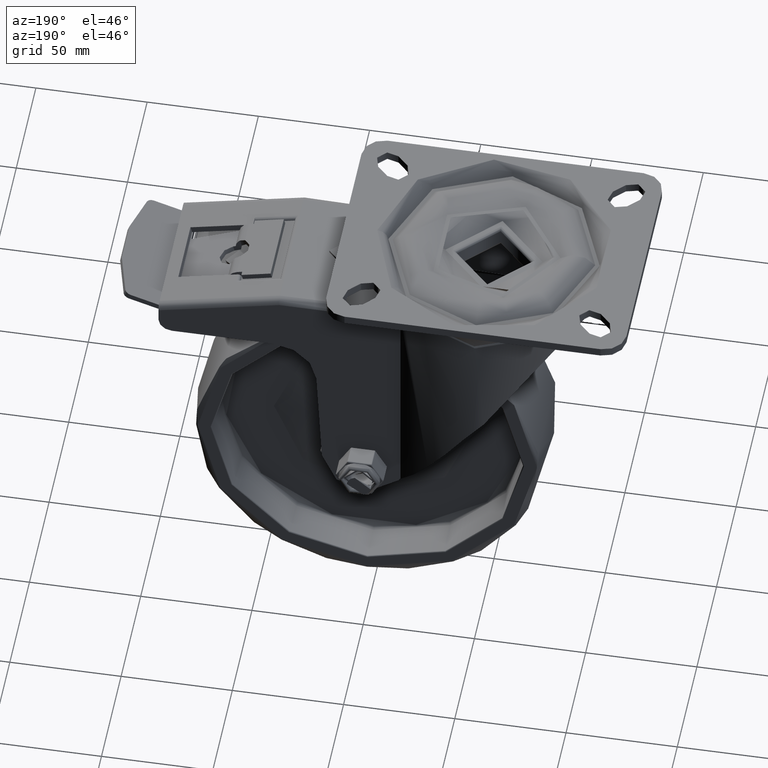
[diagram: clean part render]
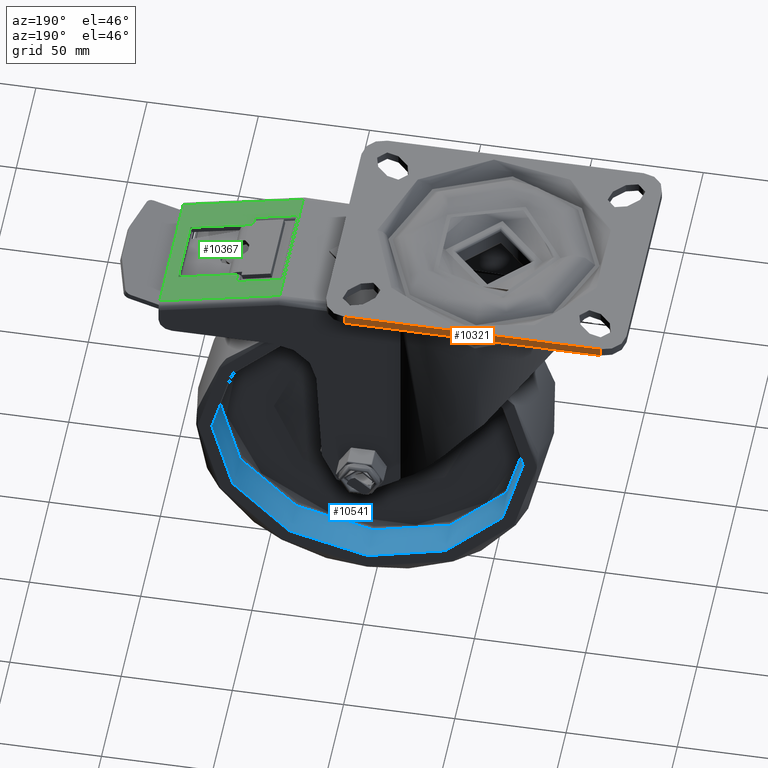
[diagram: same view with three faces highlighted in distinct colors, each labeled with its STEP entity id]
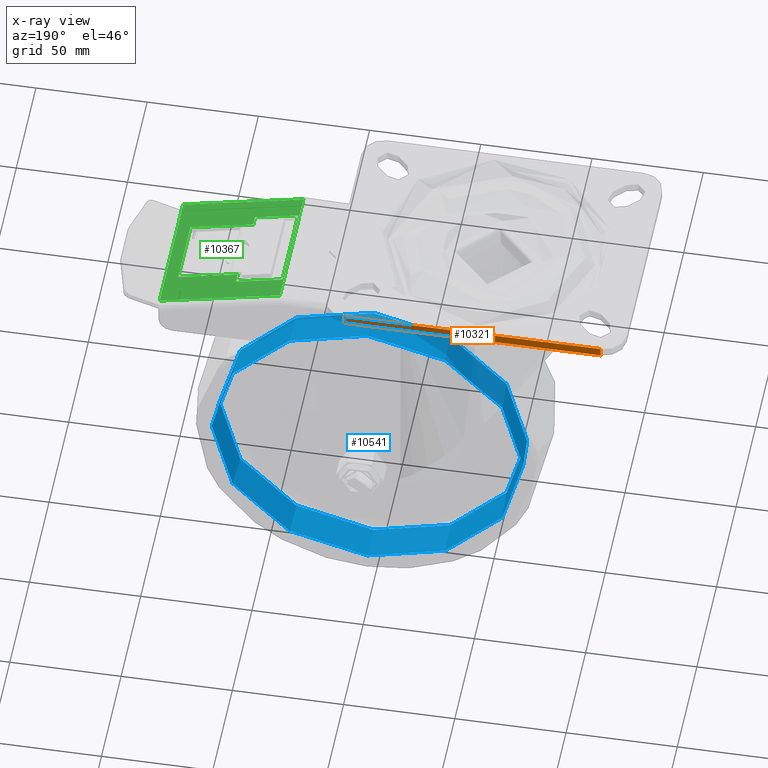
[diagram: x-ray of the same camera — body ghosted, the three highlighted faces saturated]
A machine part, auxiliary view with three faces highlighted in distinct colors.
The next image is the same camera in x-ray (body ghosted, the three faces saturated) — at least one of them is partly hidden behind the body in this view.
Their STEP definitions:

[orange] entity #10321 — the highlighted planar face has unit normal (0, 1, 0).
#589=PLANE('',#11228);
#1193=FACE_OUTER_BOUND('',#1809,.T.);
#1809=EDGE_LOOP('',(#7357,#7358,#7359,#7360));
#2416=LINE('',#15309,#3247);
#2419=LINE('',#15321,#3250);
#2463=LINE('',#18130,#3294);
#2475=LINE('',#18146,#3306);
#3247=VECTOR('',#12262,1000.);
#3250=VECTOR('',#12273,1000.);
#3294=VECTOR('',#12555,1000.);
#3306=VECTOR('',#12575,1000.);
#4527=VERTEX_POINT('',#15306);
#4528=VERTEX_POINT('',#15308);
#4530=VERTEX_POINT('',#15314);
#4533=VERTEX_POINT('',#15319);
#5513=EDGE_CURVE('',#4527,#4528,#2416,.T.);
#5519=EDGE_CURVE('',#4533,#4530,#2419,.T.);
#5663=EDGE_CURVE('',#4527,#4530,#2463,.T.);
#5675=EDGE_CURVE('',#4533,#4528,#2475,.T.);
#7357=ORIENTED_EDGE('',*,*,#5519,.F.);
#7358=ORIENTED_EDGE('',*,*,#5675,.T.);
#7359=ORIENTED_EDGE('',*,*,#5513,.F.);
#7360=ORIENTED_EDGE('',*,*,#5663,.T.);
#10321=ADVANCED_FACE('',(#1193),#589,.T.);
#11228=AXIS2_PLACEMENT_3D('',#18145,#12573,#12574);
#12262=DIRECTION('',(0.,0.,-1.));
#12273=DIRECTION('',(0.,0.,1.));
#12555=DIRECTION('',(1.,0.,0.));
#12573=DIRECTION('center_axis',(0.,1.,0.));
#12574=DIRECTION('ref_axis',(1.,0.,0.));
#12575=DIRECTION('',(-1.,0.,0.));
#15306=CARTESIAN_POINT('',(-57.5,55.,0.));
#15308=CARTESIAN_POINT('',(-57.5,55.,-4.));
#15309=CARTESIAN_POINT('',(-57.5,55.,0.));
#15314=CARTESIAN_POINT('',(57.5,55.,0.));
#15319=CARTESIAN_POINT('',(57.5,55.,-4.));
#15321=CARTESIAN_POINT('',(57.5,55.,0.));
#18130=CARTESIAN_POINT('',(-67.5,55.,0.));
#18145=CARTESIAN_POINT('Origin',(0.,55.,0.));
#18146=CARTESIAN_POINT('',(-67.5,55.,-4.));

[blue] entity #10541 — the highlighted conical surface has half-angle 3.27 deg.
#1121=CONICAL_SURFACE('',#11637,69.5404121518341,0.0570807824062628);
#1413=FACE_OUTER_BOUND('',#2058,.T.);
#2058=EDGE_LOOP('',(#8511,#8512,#8513,#8514,#8515,#8516));
#2849=LINE('',#20599,#3680);
#3680=VECTOR('',#13771,69.5404121518341);
#4257=CIRCLE('',#11635,69.9730585654439);
#4258=CIRCLE('',#11636,69.9730585654439);
#4259=CIRCLE('',#11638,69.1077657382242);
#4260=CIRCLE('',#11639,69.1077657382242);
#4983=VERTEX_POINT('',#20589);
#4984=VERTEX_POINT('',#20591);
#4985=VERTEX_POINT('',#20595);
#4986=VERTEX_POINT('',#20596);
#6229=EDGE_CURVE('',#4983,#4984,#4257,.T.);
#6230=EDGE_CURVE('',#4984,#4983,#4258,.T.);
#6231=EDGE_CURVE('',#4985,#4986,#4259,.T.);
#6232=EDGE_CURVE('',#4986,#4985,#4260,.T.);
#6233=EDGE_CURVE('',#4985,#4984,#2849,.T.);
#8511=ORIENTED_EDGE('',*,*,#6231,.T.);
#8512=ORIENTED_EDGE('',*,*,#6232,.T.);
#8513=ORIENTED_EDGE('',*,*,#6233,.T.);
#8514=ORIENTED_EDGE('',*,*,#6229,.F.);
#8515=ORIENTED_EDGE('',*,*,#6230,.F.);
#8516=ORIENTED_EDGE('',*,*,#6233,.F.);
#10541=ADVANCED_FACE('',(#1413),#1121,.F.);
#11635=AXIS2_PLACEMENT_3D('',#20592,#13761,#13762);
#11636=AXIS2_PLACEMENT_3D('',#20593,#13763,#13764);
#11637=AXIS2_PLACEMENT_3D('',#20594,#13765,#13766);
#11638=AXIS2_PLACEMENT_3D('',#20597,#13767,#13768);
#11639=AXIS2_PLACEMENT_3D('',#20598,#13769,#13770);
#13761=DIRECTION('center_axis',(-3.38288897427651E-15,1.,0.));
#13762=DIRECTION('ref_axis',(-1.,-3.38288897427651E-15,0.));
#13763=DIRECTION('center_axis',(-3.38288897427651E-15,1.,0.));
#13764=DIRECTION('ref_axis',(-1.,-3.38288897427651E-15,0.));
#13765=DIRECTION('center_axis',(3.38288897427651E-15,-1.,0.));
#13766=DIRECTION('ref_axis',(-1.,-3.38288897427651E-15,0.));
#13767=DIRECTION('center_axis',(-3.38288897427651E-15,1.,0.));
#13768=DIRECTION('ref_axis',(-1.,-3.38288897427651E-15,0.));
#13769=DIRECTION('center_axis',(-3.38288897427651E-15,1.,0.));
#13770=DIRECTION('ref_axis',(-1.,-3.38288897427651E-15,0.));
#13771=DIRECTION('',(0.0570497905385145,-0.998371334423977,6.98658433750146E-18));
#20589=CARTESIAN_POINT('',(8.54783587179774E-14,-22.0285248952693,69.9730585654439));
#20591=CARTESIAN_POINT('',(69.973058565444,-22.028524895269,8.56922821987212E-15));
#20592=CARTESIAN_POINT('Origin',(7.45200539877821E-14,-22.0285248952693,
0.));
#20593=CARTESIAN_POINT('Origin',(7.45200539877821E-14,-22.0285248952693,
0.));
#20594=CARTESIAN_POINT('Origin',(4.89071452964613E-14,-14.4572126570961,
0.));
#20595=CARTESIAN_POINT('',(69.1077657382242,-6.88590041892271,8.46326041075414E-15));
#20596=CARTESIAN_POINT('',(3.25176577237247E-14,-6.88590041892295,69.1077657382242));
#20597=CARTESIAN_POINT('Origin',(2.32942366051405E-14,-6.88590041892295,
0.));
#20598=CARTESIAN_POINT('Origin',(2.32942366051405E-14,-6.88590041892295,
0.));
#20599=CARTESIAN_POINT('',(69.5404121518341,-14.4572126570959,8.51624431531313E-15));

[green] entity #10367 — the highlighted planar face has unit normal (0.2341, 0, 0.9722).
#495=FACE_BOUND('',#1862,.T.);
#603=PLANE('',#11380);
#1239=FACE_OUTER_BOUND('',#1861,.T.);
#1861=EDGE_LOOP('',(#7585,#7586,#7587,#7588));
#1862=EDGE_LOOP('',(#7589,#7590,#7591,#7592,#7593,#7594,#7595,#7596));
#2507=LINE('',#18655,#3338);
#2509=LINE('',#18664,#3340);
#2520=LINE('',#18766,#3351);
#2522=LINE('',#18774,#3353);
#2524=LINE('',#18780,#3355);
#2531=LINE('',#18808,#3362);
#2535=LINE('',#18826,#3366);
#2542=LINE('',#18839,#3373);
#2543=LINE('',#18841,#3374);
#2544=LINE('',#18842,#3375);
#2545=LINE('',#18844,#3376);
#2546=LINE('',#18845,#3377);
#3338=VECTOR('',#12831,1000.);
#3340=VECTOR('',#12839,1000.);
#3351=VECTOR('',#12874,1000.);
#3353=VECTOR('',#12882,1000.);
#3355=VECTOR('',#12888,1000.);
#3362=VECTOR('',#12915,999.999999999999);
#3366=VECTOR('',#12935,1000.);
#3373=VECTOR('',#12944,1000.);
#3374=VECTOR('',#12947,1000.);
#3375=VECTOR('',#12948,1000.);
#3376=VECTOR('',#12949,10.);
#3377=VECTOR('',#12950,1000.);
#4688=VERTEX_POINT('',#18645);
#4690=VERTEX_POINT('',#18651);
#4693=VERTEX_POINT('',#18658);
#4695=VERTEX_POINT('',#18662);
#4707=VERTEX_POINT('',#18762);
#4709=VERTEX_POINT('',#18765);
#4711=VERTEX_POINT('',#18771);
#4714=VERTEX_POINT('',#18778);
#4725=VERTEX_POINT('',#18807);
#4731=VERTEX_POINT('',#18825);
#4733=VERTEX_POINT('',#18831);
#4737=VERTEX_POINT('',#18843);
#5758=EDGE_CURVE('',#4688,#4690,#2507,.T.);
#5762=EDGE_CURVE('',#4695,#4693,#2509,.T.);
#5781=EDGE_CURVE('',#4707,#4709,#2520,.T.);
#5785=EDGE_CURVE('',#4711,#4707,#2522,.T.);
#5788=EDGE_CURVE('',#4714,#4711,#2524,.T.);
#5801=EDGE_CURVE('',#4709,#4725,#2531,.T.);
#5810=EDGE_CURVE('',#4725,#4731,#2535,.F.);
#5817=EDGE_CURVE('',#4733,#4731,#2542,.T.);
#5818=EDGE_CURVE('',#4695,#4690,#2543,.T.);
#5819=EDGE_CURVE('',#4693,#4688,#2544,.T.);
#5820=EDGE_CURVE('',#4737,#4714,#2545,.F.);
#5821=EDGE_CURVE('',#4733,#4737,#2546,.T.);
#7585=ORIENTED_EDGE('',*,*,#5762,.F.);
#7586=ORIENTED_EDGE('',*,*,#5818,.T.);
#7587=ORIENTED_EDGE('',*,*,#5758,.F.);
#7588=ORIENTED_EDGE('',*,*,#5819,.F.);
#7589=ORIENTED_EDGE('',*,*,#5788,.F.);
#7590=ORIENTED_EDGE('',*,*,#5820,.F.);
#7591=ORIENTED_EDGE('',*,*,#5821,.F.);
#7592=ORIENTED_EDGE('',*,*,#5817,.T.);
#7593=ORIENTED_EDGE('',*,*,#5810,.F.);
#7594=ORIENTED_EDGE('',*,*,#5801,.F.);
#7595=ORIENTED_EDGE('',*,*,#5781,.F.);
#7596=ORIENTED_EDGE('',*,*,#5785,.F.);
#10367=ADVANCED_FACE('',(#1239,#495),#603,.T.);
#11380=AXIS2_PLACEMENT_3D('',#18840,#12945,#12946);
#12831=DIRECTION('',(0.972223637157778,4.24574179265313E-16,-0.23405383857502));
#12839=DIRECTION('',(-0.972223637157778,2.12287089632656E-16,0.23405383857502));
#12874=DIRECTION('',(5.25227064959117E-16,-1.,-1.26443552675343E-16));
#12882=DIRECTION('',(-0.972223637157778,-3.75075346157149E-16,0.23405383857502));
#12888=DIRECTION('',(-1.70698796111713E-16,1.,4.10941546194865E-17));
#12915=DIRECTION('',(0.972223637157778,5.62613019235723E-16,-0.23405383857502));
#12935=DIRECTION('',(1.70698796111713E-16,-1.,-4.10941546194864E-17));
#12944=DIRECTION('',(-0.97222363715778,0.,0.234053838575011));
#12945=DIRECTION('center_axis',(0.23405383857502,0.,0.972223637157778));
#12946=DIRECTION('ref_axis',(0.972223637157778,0.,-0.23405383857502));
#12947=DIRECTION('',(0.,1.,0.));
#12948=DIRECTION('',(0.,1.,0.));
#12949=DIRECTION('',(0.972223637157778,0.,-0.23405383857502));
#12950=DIRECTION('',(1.44872622679615E-8,1.,-3.48767399269838E-9));
#18645=CARTESIAN_POINT('',(91.,30.,-18.));
#18651=CARTESIAN_POINT('',(145.,30.,-31.));
#18655=CARTESIAN_POINT('',(99.0910868923205,30.,-19.9478542518549));
#18658=CARTESIAN_POINT('',(91.,-30.,-18.));
#18662=CARTESIAN_POINT('',(145.,-30.,-31.));
#18664=CARTESIAN_POINT('',(99.0910868923205,-30.,-19.9478542518549));
#18762=CARTESIAN_POINT('',(91.5276999563223,20.,-18.1270388783739));
#18765=CARTESIAN_POINT('',(91.5276999563224,-20.,-18.1270388783739));
#18766=CARTESIAN_POINT('',(91.5276999563223,-8.21174820783102E-16,-18.1270388783739));
#18771=CARTESIAN_POINT('',(112.430508155214,20.,-23.1591964077368));
#18774=CARTESIAN_POINT('',(109.989552027884,20.,-22.5715588215277));
#18778=CARTESIAN_POINT('',(112.430508155214,15.5000004023314,-23.1591964077368));
#18780=CARTESIAN_POINT('',(112.430508155214,8.50000010058285,-23.1591964077368));
#18807=CARTESIAN_POINT('',(110.972172699478,-20.,-22.8081156498743));
#18808=CARTESIAN_POINT('',(109.989552027884,-20.,-22.5715588215277));
#18825=CARTESIAN_POINT('',(110.972172699478,-15.4999995976686,-22.8081156498743));
#18826=CARTESIAN_POINT('',(110.972172699478,-8.49999989941715,-22.8081156498743));
#18831=CARTESIAN_POINT('',(139.166657952501,-15.4999999998168,-29.5956769144908));
#18839=CARTESIAN_POINT('',(112.916619973793,-15.4999995976686,-23.2762233270243));
#18840=CARTESIAN_POINT('Origin',(118.,0.,-24.5));
#18841=CARTESIAN_POINT('',(145.,0.,-31.));
#18842=CARTESIAN_POINT('',(91.,0.,-18.));
#18843=CARTESIAN_POINT('',(139.166658401606,15.5000004007831,-29.5956770226088));
#18844=CARTESIAN_POINT('',(114.972198168318,15.5000004023314,-23.7710847442247));
#18845=CARTESIAN_POINT('',(139.166657952501,-15.5000004023313,-29.5956769144909));